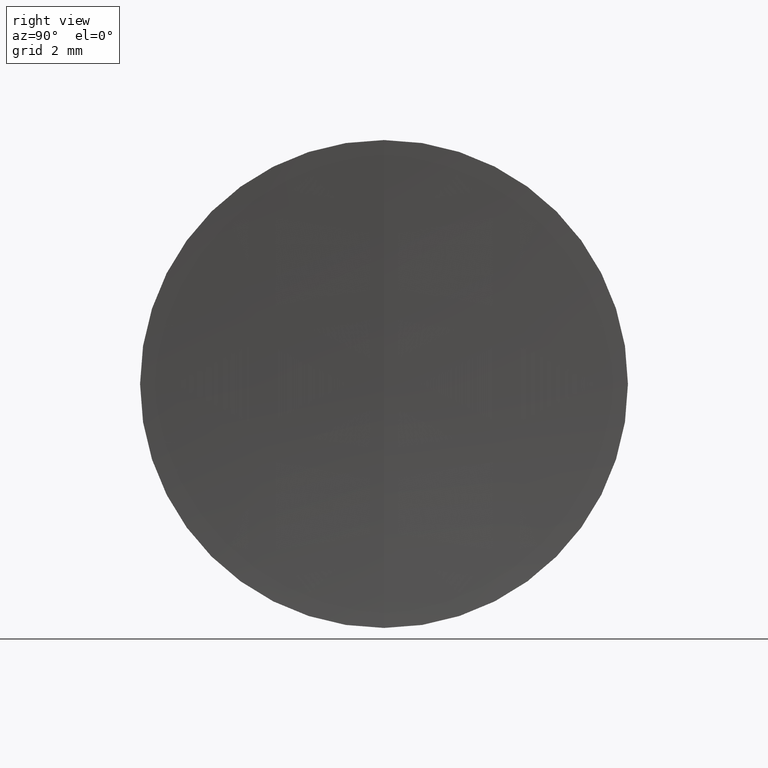
[diagram: clean part render]
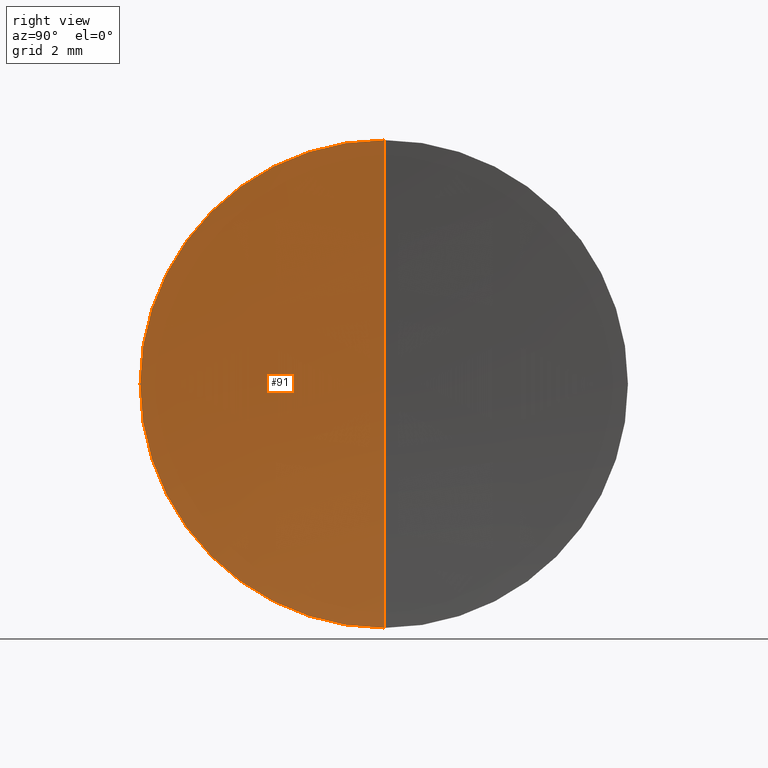
[diagram: same view with one face highlighted and labeled with its STEP entity id]
A machine part, right view. The second image highlights one B-rep face of the part: STEP entity #91.
In plain terms, the highlighted spherical surface has radius 87.9 mm.
Its self-contained STEP definition (entity closure, byte-faithful):
#15 = DIRECTION ( 'NONE',  ( 0.0000000000000000000, 0.0000000000000000000, -1.000000000000000000 ) ) ;
#19 = AXIS2_PLACEMENT_3D ( 'NONE', #266, #180, #176 ) ;
#60 = CARTESIAN_POINT ( 'NONE',  ( 234.6302652343706800, 0.0000000000000000000, 6.349999999999998800 ) ) ;
#84 = AXIS2_PLACEMENT_3D ( 'NONE', #269, #96, #15 ) ;
#91 = ADVANCED_FACE ( 'NONE', ( #156 ), #258, .F. ) ;
#96 = DIRECTION ( 'NONE',  ( -0.0000000000000000000, -1.000000000000000000, -0.0000000000000000000 ) ) ;
#99 = CARTESIAN_POINT ( 'NONE',  ( 234.4005994415584800, 0.0000000000000000000, -5.382322682252618100E-015 ) ) ;
#112 = DIRECTION ( 'NONE',  ( 0.0000000000000000000, 1.224646799147353200E-016, -1.000000000000000000 ) ) ;
#113 = CIRCLE ( 'NONE', #125, 87.90000000000000600 ) ;
#121 = CARTESIAN_POINT ( 'NONE',  ( 234.6302652343706800, 7.776507174585690200E-016, -6.349999999999997900 ) ) ;
#125 = AXIS2_PLACEMENT_3D ( 'NONE', #195, #290, #112 ) ;
#131 = EDGE_CURVE ( 'NONE', #220, #224, #293, .T. ) ;
#132 = CIRCLE ( 'NONE', #314, 6.349999999999998800 ) ;
#136 = VERTEX_POINT ( 'NONE', #60 ) ;
#145 = ORIENTED_EDGE ( 'NONE', *, *, #215, .F. ) ;
#151 = EDGE_LOOP ( 'NONE', ( #169, #145, #155 ) ) ;
#155 = ORIENTED_EDGE ( 'NONE', *, *, #131, .T. ) ;
#156 = FACE_OUTER_BOUND ( 'NONE', #151, .T. ) ;
#169 = ORIENTED_EDGE ( 'NONE', *, *, #201, .F. ) ;
#176 = DIRECTION ( 'NONE',  ( 0.0000000000000000000, 0.0000000000000000000, 1.000000000000000000 ) ) ;
#180 = DIRECTION ( 'NONE',  ( 0.0000000000000000000, 1.000000000000000000, -0.0000000000000000000 ) ) ;
#195 = CARTESIAN_POINT ( 'NONE',  ( 322.3005994415584600, 0.0000000000000000000, 0.0000000000000000000 ) ) ;
#201 = EDGE_CURVE ( 'NONE', #136, #224, #113, .T. ) ;
#215 = EDGE_CURVE ( 'NONE', #220, #136, #132, .T. ) ;
#220 = VERTEX_POINT ( 'NONE', #121 ) ;
#224 = VERTEX_POINT ( 'NONE', #99 ) ;
#255 = CARTESIAN_POINT ( 'NONE',  ( 234.6302652343706800, 0.0000000000000000000, 0.0000000000000000000 ) ) ;
#258 = SPHERICAL_SURFACE ( 'NONE', #84, 87.90000000000000600 ) ;
#266 = CARTESIAN_POINT ( 'NONE',  ( 322.3005994415584600, 0.0000000000000000000, 0.0000000000000000000 ) ) ;
#269 = CARTESIAN_POINT ( 'NONE',  ( 322.3005994415584600, 0.0000000000000000000, 0.0000000000000000000 ) ) ;
#270 = DIRECTION ( 'NONE',  ( -1.000000000000000000, -0.0000000000000000000, -0.0000000000000000000 ) ) ;
#290 = DIRECTION ( 'NONE',  ( 0.0000000000000000000, -1.000000000000000000, -1.224646799147353200E-016 ) ) ;
#293 = CIRCLE ( 'NONE', #19, 87.90000000000000600 ) ;
#303 = DIRECTION ( 'NONE',  ( 0.0000000000000000000, 0.0000000000000000000, 1.000000000000000000 ) ) ;
#314 = AXIS2_PLACEMENT_3D ( 'NONE', #255, #270, #303 ) ;